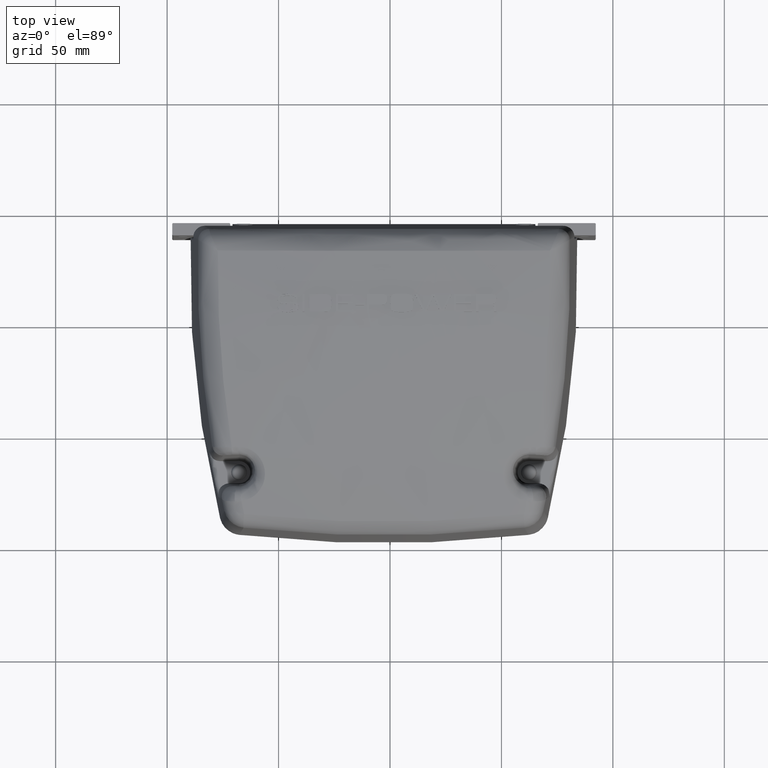
[diagram: clean part render]
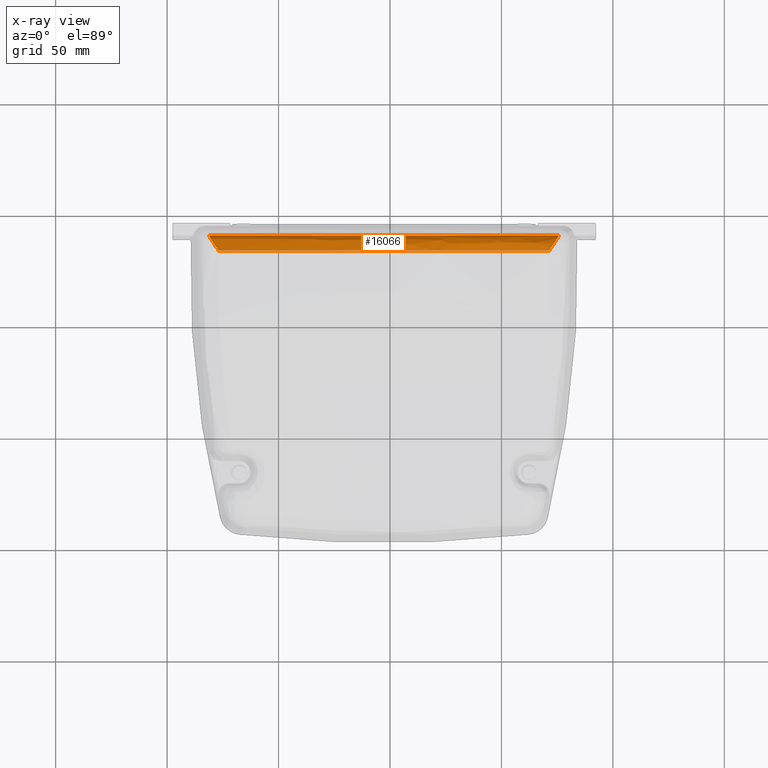
[diagram: x-ray — body ghosted, one internal face saturated and labeled with its STEP entity id]
A machine part, top view, then the same camera in x-ray: the body is ghosted and one INTERNAL B-rep face — a face not visible from any outside direction — is saturated and labeled: STEP entity #16066.
In plain terms, the highlighted face is a freeform B-spline surface patch.
Its self-contained STEP definition (entity closure, byte-faithful):
#184=B_SPLINE_SURFACE_WITH_KNOTS('',3,3,((#30725,#30726,#30727,#30728,#30729,
#30730),(#30731,#30732,#30733,#30734,#30735,#30736),(#30737,#30738,#30739,
#30740,#30741,#30742),(#30743,#30744,#30745,#30746,#30747,#30748),(#30749,
#30750,#30751,#30752,#30753,#30754),(#30755,#30756,#30757,#30758,#30759,
#30760)),.UNSPECIFIED.,.F.,.F.,.F.,(4,1,1,4),(4,1,1,4),(0.,0.285714285714286,
0.571428571428571,1.),(-16.1172209422151,-11.6310556817607,-7.14489042130641,
-0.415642530624909),.UNSPECIFIED.);
#231=B_SPLINE_CURVE_WITH_KNOTS('',3,(#22333,#22334,#22335,#22336,#22337,
#22338),.UNSPECIFIED.,.F.,.F.,(4,1,1,4),(0.415642530624909,7.14489042130641,
11.6310556817607,16.1172209422151),.UNSPECIFIED.);
#445=B_SPLINE_CURVE_WITH_KNOTS('',3,(#30369,#30370,#30371,#30372,#30373,
#30374),.UNSPECIFIED.,.F.,.F.,(4,1,1,4),(-15.6231836666947,-11.6310556817607,
-7.14489042130641,-0.9096915119436),.UNSPECIFIED.);
#458=B_SPLINE_CURVE_WITH_KNOTS('',3,(#30672,#30673,#30674,#30675,#30676,
#30677,#30678,#30679,#30680,#30681,#30682,#30683,#30684,#30685,#30686,#30687,
#30688,#30689,#30690,#30691,#30692,#30693,#30694,#30695,#30696),
 .UNSPECIFIED.,.F.,.F.,(4,3,3,3,3,3,3,3,4),(-0.877202593407976,-0.875788595504896,
-0.700630876403917,-0.577706118272407,-0.525473157302938,-0.350315438201958,
-0.30295809898356,-0.175157719100979,0.),.UNSPECIFIED.);
#460=B_SPLINE_CURVE_WITH_KNOTS('',3,(#30762,#30763,#30764,#30765,#30766,
#30767,#30768,#30769,#30770,#30771,#30772,#30773,#30774,#30775,#30776,#30777,
#30778,#30779,#30780,#30781,#30782,#30783,#30784,#30785,#30786),
 .UNSPECIFIED.,.F.,.F.,(4,3,3,3,3,3,3,3,4),(-0.875788595508187,-0.70063087640655,
-0.572828406833276,-0.525473157304912,-0.350315438203275,-0.298082156703841,
-0.175157719101637,0.,0.00141399788835903),.UNSPECIFIED.);
#1377=ELLIPSE('',#17657,6.477673600509,5.77002497118995);
#1378=ELLIPSE('',#17658,6.47767370662214,5.77002489012488);
#4684=FACE_OUTER_BOUND('',#5601,.T.);
#5601=EDGE_LOOP('',(#14254,#14255,#14256,#14257,#14258,#14259));
#6692=VERTEX_POINT('',#22327);
#6693=VERTEX_POINT('',#22332);
#8027=VERTEX_POINT('',#29932);
#8030=VERTEX_POINT('',#30014);
#8051=VERTEX_POINT('',#30666);
#8053=VERTEX_POINT('',#30761);
#8196=EDGE_CURVE('',#6692,#6693,#231,.T.);
#10184=EDGE_CURVE('',#8027,#8030,#445,.T.);
#10198=EDGE_CURVE('',#8027,#8051,#458,.T.);
#10201=EDGE_CURVE('',#8051,#6693,#1377,.T.);
#10202=EDGE_CURVE('',#8053,#8030,#460,.T.);
#10203=EDGE_CURVE('',#6692,#8053,#1378,.T.);
#14254=ORIENTED_EDGE('',*,*,#10202,.T.);
#14255=ORIENTED_EDGE('',*,*,#10184,.F.);
#14256=ORIENTED_EDGE('',*,*,#10198,.T.);
#14257=ORIENTED_EDGE('',*,*,#10201,.T.);
#14258=ORIENTED_EDGE('',*,*,#8196,.F.);
#14259=ORIENTED_EDGE('',*,*,#10203,.T.);
#16066=ADVANCED_FACE('',(#4684),#184,.T.);
#17657=AXIS2_PLACEMENT_3D('',#30724,#21691,#21692);
#17658=AXIS2_PLACEMENT_3D('',#30787,#21693,#21694);
#21691=DIRECTION('center_axis',(-0.999829617617703,0.0184393387607162,0.000852361721747248));
#21692=DIRECTION('ref_axis',(-0.00760469390052131,-0.453542555117414,0.891202176460676));
#21693=DIRECTION('center_axis',(0.999829617595621,0.0184393399530703,0.000852361829744505));
#21694=DIRECTION('ref_axis',(0.00760469600483097,-0.453542643032519,0.891202131701754));
#22327=CARTESIAN_POINT('',(175.680186701531,137.672468908846,212.048191093134));
#22332=CARTESIAN_POINT('',(18.8786533514268,137.672468908846,212.048191093134));
#22333=CARTESIAN_POINT('Ctrl Pts',(175.68018670153,137.672468908846,212.048191093134));
#22334=CARTESIAN_POINT('Ctrl Pts',(153.375164807727,137.567590134622,214.450309948977));
#22335=CARTESIAN_POINT('Ctrl Pts',(115.977487721513,137.467369139248,216.745748130039));
#22336=CARTESIAN_POINT('Ctrl Pts',(63.6187057177291,137.502448606321,215.942296240646));
#22337=CARTESIAN_POINT('Ctrl Pts',(33.7486892678912,137.60254962578,213.649605959798));
#22338=CARTESIAN_POINT('Ctrl Pts',(18.8786533514268,137.672468908846,212.048191093134));
#29932=CARTESIAN_POINT('',(23.0912261018381,130.675323698717,219.219975930914));
#30014=CARTESIAN_POINT('',(171.467702719743,130.675324746552,219.220018222431));
#30369=CARTESIAN_POINT('Ctrl Pts',(23.091162925108,130.675324595664,219.219999833895));
#30370=CARTESIAN_POINT('Ctrl Pts',(36.4624017578112,130.61551018889,220.5686030382));
#30371=CARTESIAN_POINT('Ctrl Pts',(64.9600978983905,130.522801336777,222.659451298302));
#30372=CARTESIAN_POINT('Ctrl Pts',(114.493020351495,130.489109237194,223.419541352513));
#30373=CARTESIAN_POINT('Ctrl Pts',(150.585106550077,130.581907060642,221.326223050839));
#30374=CARTESIAN_POINT('Ctrl Pts',(171.467754540972,130.675324678406,219.219996678969));
#30666=CARTESIAN_POINT('',(18.8781027016086,137.613308246305,212.700308285549));
#30672=CARTESIAN_POINT('Ctrl Pts',(23.0910257759418,130.675325209182,219.219986001221));
#30673=CARTESIAN_POINT('Ctrl Pts',(23.0877492162061,130.680041042239,219.219642998319));
#30674=CARTESIAN_POINT('Ctrl Pts',(23.0844731748398,130.68475854313,219.21929516494));
#30675=CARTESIAN_POINT('Ctrl Pts',(23.0811976239044,130.689476061203,219.218942500958));
#30676=CARTESIAN_POINT('Ctrl Pts',(22.6754416964105,131.273854371568,219.175256567193));
#30677=CARTESIAN_POINT('Ctrl Pts',(22.2744490677359,131.86248255056,219.057340817807));
#30678=CARTESIAN_POINT('Ctrl Pts',(21.8890417179567,132.439688560589,218.865557884162));
#30679=CARTESIAN_POINT('Ctrl Pts',(21.6185648842957,132.844768676607,218.730965638653));
#30680=CARTESIAN_POINT('Ctrl Pts',(21.3557445869222,133.244180110703,218.560170696591));
#30681=CARTESIAN_POINT('Ctrl Pts',(21.1034426421537,133.634464582594,218.350575911521));
#30682=CARTESIAN_POINT('Ctrl Pts',(20.996234966223,133.800303538856,218.261515282935));
#30683=CARTESIAN_POINT('Ctrl Pts',(20.8909300653767,133.964467422292,218.165412630683));
#30684=CARTESIAN_POINT('Ctrl Pts',(20.7877402973174,134.126593435433,218.062130198222));
#30685=CARTESIAN_POINT('Ctrl Pts',(20.4417043063962,134.670265900896,217.715783467014));
#30686=CARTESIAN_POINT('Ctrl Pts',(20.1194100382791,135.19209875886,217.289180833186));
#30687=CARTESIAN_POINT('Ctrl Pts',(19.8383949985006,135.66681484605,216.775427007005));
#30688=CARTESIAN_POINT('Ctrl Pts',(19.7624170476996,135.795163690102,216.636523541339));
#30689=CARTESIAN_POINT('Ctrl Pts',(19.6894492842371,135.919900232195,216.491287656526));
#30690=CARTESIAN_POINT('Ctrl Pts',(19.620067963227,136.04027438906,216.339570718001));
#30691=CARTESIAN_POINT('Ctrl Pts',(19.4328327990859,136.365120827421,215.930141415212));
#30692=CARTESIAN_POINT('Ctrl Pts',(19.2717510740358,136.65866098999,215.473308088612));
#30693=CARTESIAN_POINT('Ctrl Pts',(19.1475587104364,136.907031347479,214.970911140787));
#30694=CARTESIAN_POINT('Ctrl Pts',(18.9773459836996,137.247437106445,214.28234743272));
#30695=CARTESIAN_POINT('Ctrl Pts',(18.8767250839882,137.500463980452,213.505452357634));
#30696=CARTESIAN_POINT('Ctrl Pts',(18.8781082410847,137.612770818272,212.700233338014));
#30724=CARTESIAN_POINT('Origin',(18.7698171551989,131.757380475559,212.344622710049));
#30725=CARTESIAN_POINT('Ctrl Pts',(18.1292205242033,130.698273549326,218.702595607618));
#30726=CARTESIAN_POINT('Ctrl Pts',(33.1413832600351,130.626563505538,220.319319778895));
#30727=CARTESIAN_POINT('Ctrl Pts',(63.2969230517998,130.523932621785,222.633929633181));
#30728=CARTESIAN_POINT('Ctrl Pts',(116.156234605616,130.487977925382,223.445063622348));
#30729=CARTESIAN_POINT('Ctrl Pts',(153.91140771157,130.59070863787,221.127678387455));
#30730=CARTESIAN_POINT('Ctrl Pts',(176.429619528754,130.698273549327,218.702595607618));
#30731=CARTESIAN_POINT('Ctrl Pts',(18.134242674328,131.714711621935,218.700340769419));
#30732=CARTESIAN_POINT('Ctrl Pts',(33.1454571237073,131.643113460644,220.317126912883));
#30733=CARTESIAN_POINT('Ctrl Pts',(63.2990353292523,131.540639225726,222.631816489846));
#30734=CARTESIAN_POINT('Ctrl Pts',(116.155080697285,131.504738282494,223.442977155588));
#30735=CARTESIAN_POINT('Ctrl Pts',(153.907807989085,131.607314533985,221.125516507403));
#30736=CARTESIAN_POINT('Ctrl Pts',(176.424597378629,131.714711621936,218.700340769419));
#30737=CARTESIAN_POINT('Ctrl Pts',(18.1926076577059,133.741309062019,218.246872293426));
#30738=CARTESIAN_POINT('Ctrl Pts',(33.1927354799007,133.670048478485,219.862694205589));
#30739=CARTESIAN_POINT('Ctrl Pts',(63.3240595904726,133.56804638671,222.175997077194));
#30740=CARTESIAN_POINT('Ctrl Pts',(116.141186386122,133.532307859335,222.986670256486));
#30741=CARTESIAN_POINT('Ctrl Pts',(153.86607292264,133.634418339978,220.670601686532));
#30742=CARTESIAN_POINT('Ctrl Pts',(176.366232395252,133.74130906202,218.246872293426));
#30743=CARTESIAN_POINT('Ctrl Pts',(18.4437901107464,136.634249321138,216.04081072689));
#30744=CARTESIAN_POINT('Ctrl Pts',(33.3962613648826,136.563735963245,217.651520657971));
#30745=CARTESIAN_POINT('Ctrl Pts',(63.431927851809,136.462790155626,219.957509646034));
#30746=CARTESIAN_POINT('Ctrl Pts',(116.081250119156,136.427416616049,220.765619650796));
#30747=CARTESIAN_POINT('Ctrl Pts',(153.686375219193,136.528479435952,218.456872159368));
#30748=CARTESIAN_POINT('Ctrl Pts',(176.115049942211,136.634249321138,216.04081072689));
#30749=CARTESIAN_POINT('Ctrl Pts',(18.7152446382376,137.606346390733,213.562645745462));
#30750=CARTESIAN_POINT('Ctrl Pts',(33.6162885036806,137.536276887503,215.16756212326));
#30751=CARTESIAN_POINT('Ctrl Pts',(63.548486393185,137.435955500573,217.46525248627));
#30752=CARTESIAN_POINT('Ctrl Pts',(116.016524528222,137.400798602194,218.270455290678));
#30753=CARTESIAN_POINT('Ctrl Pts',(153.492061664137,137.501242286587,215.970016860475));
#30754=CARTESIAN_POINT('Ctrl Pts',(175.84359541472,137.606346390734,213.562645745462));
#30755=CARTESIAN_POINT('Ctrl Pts',(18.8786533514268,137.672468908846,212.048191093134));
#30756=CARTESIAN_POINT('Ctrl Pts',(33.7486892678912,137.60254962578,213.649605959798));
#30757=CARTESIAN_POINT('Ctrl Pts',(63.6187057177291,137.502448606321,215.942296240646));
#30758=CARTESIAN_POINT('Ctrl Pts',(115.977487721513,137.467369139248,216.745748130039));
#30759=CARTESIAN_POINT('Ctrl Pts',(153.375164807727,137.567590134622,214.450309948977));
#30760=CARTESIAN_POINT('Ctrl Pts',(175.68018670153,137.672468908846,212.048191093134));
#30761=CARTESIAN_POINT('',(175.680731811871,137.612770818395,212.700233338031));
#30762=CARTESIAN_POINT('Ctrl Pts',(175.680731811871,137.612770818395,212.700233338031));
#30763=CARTESIAN_POINT('Ctrl Pts',(175.682114968959,137.500463981023,213.505452357734));
#30764=CARTESIAN_POINT('Ctrl Pts',(175.581490153246,137.247442679816,214.282331434156));
#30765=CARTESIAN_POINT('Ctrl Pts',(175.411275347369,136.90704182864,214.970891117477));
#30766=CARTESIAN_POINT('Ctrl Pts',(175.287079436046,136.658670990928,215.473293343473));
#30767=CARTESIAN_POINT('Ctrl Pts',(175.125993767953,136.365127095853,215.930135451914));
#30768=CARTESIAN_POINT('Ctrl Pts',(174.938754298313,136.040274290205,216.339572962791));
#30769=CARTESIAN_POINT('Ctrl Pts',(174.869375577886,135.919905053813,216.49128376743));
#30770=CARTESIAN_POINT('Ctrl Pts',(174.796410797263,135.795173623908,216.636514234792));
#30771=CARTESIAN_POINT('Ctrl Pts',(174.720436102749,135.6668300845,216.775412828586));
#30772=CARTESIAN_POINT('Ctrl Pts',(174.439420706714,135.192112669895,217.289171305581));
#30773=CARTESIAN_POINT('Ctrl Pts',(174.117126303632,134.670276553703,217.715778575269));
#30774=CARTESIAN_POINT('Ctrl Pts',(173.771090351517,134.126600070982,218.062128782639));
#30775=CARTESIAN_POINT('Ctrl Pts',(173.667899961802,133.964471864973,218.165412885514));
#30776=CARTESIAN_POINT('Ctrl Pts',(173.562594427327,133.800305681718,218.261517031092));
#30777=CARTESIAN_POINT('Ctrl Pts',(173.455386157778,133.634464439766,218.350578924927));
#30778=CARTESIAN_POINT('Ctrl Pts',(173.203085022137,133.244178001444,218.560174854902));
#30779=CARTESIAN_POINT('Ctrl Pts',(172.940265939627,132.844764833597,218.730970291284));
#30780=CARTESIAN_POINT('Ctrl Pts',(172.669791335088,132.439684861151,218.865562417381));
#30781=CARTESIAN_POINT('Ctrl Pts',(172.284386156671,131.862477550617,219.057345680954));
#30782=CARTESIAN_POINT('Ctrl Pts',(171.883397749319,131.273853318404,219.175260626482));
#30783=CARTESIAN_POINT('Ctrl Pts',(171.47764288924,130.689476079092,219.218947090969));
#30784=CARTESIAN_POINT('Ctrl Pts',(171.474367346955,130.684758569714,219.219299759232));
#30785=CARTESIAN_POINT('Ctrl Pts',(171.471091300594,130.680041057625,219.219647598552));
#30786=CARTESIAN_POINT('Ctrl Pts',(171.467814742653,130.675324947715,219.219990607018));
#30787=CARTESIAN_POINT('Origin',(175.789022904935,131.757380456149,212.344622951534));